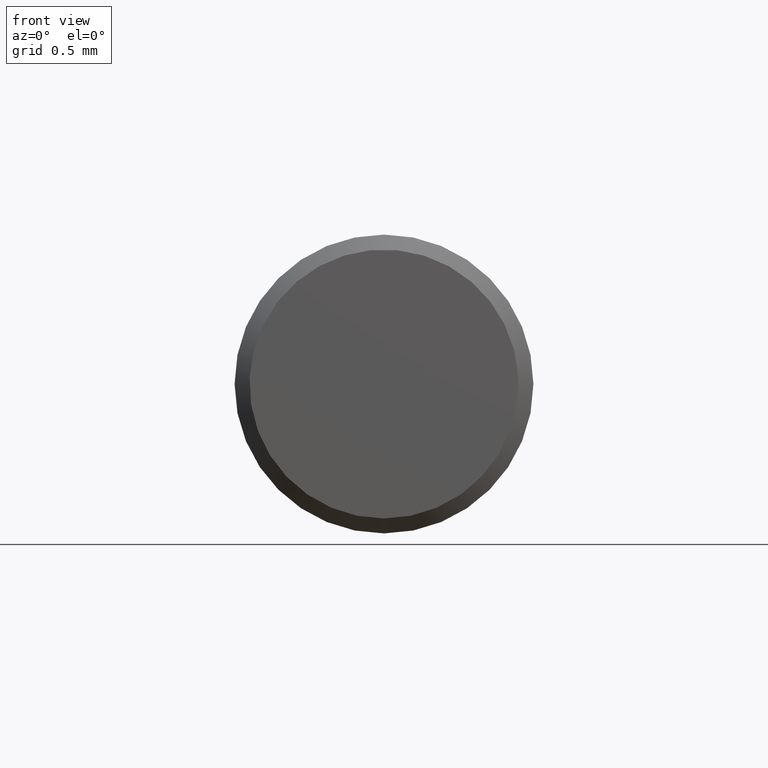
[diagram: clean part render]
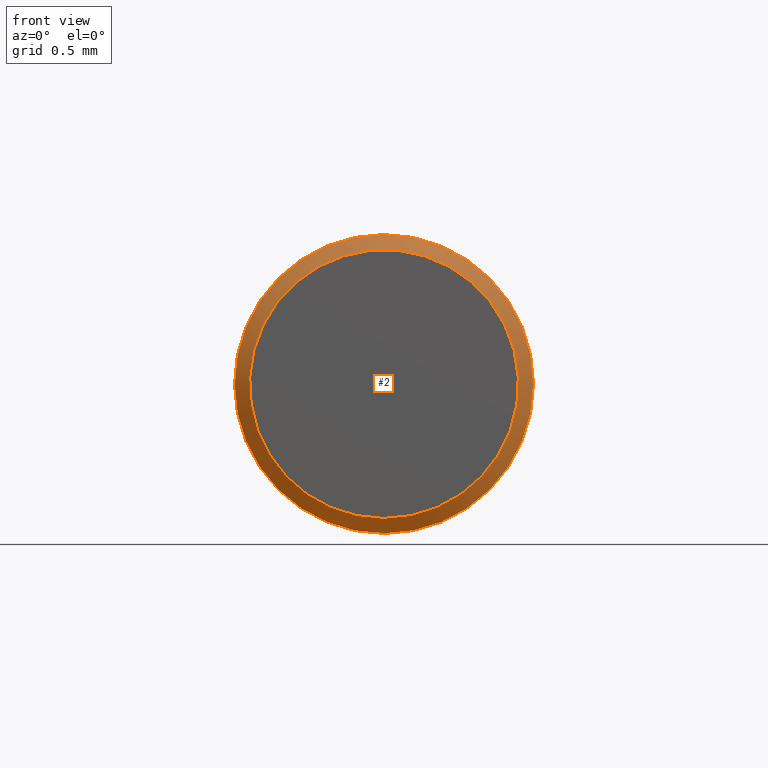
[diagram: same view with one face highlighted and labeled with its STEP entity id]
A machine part, front view. The second image highlights one B-rep face of the part: STEP entity #2.
In plain terms, the highlighted conical surface has half-angle 45 deg.
Its self-contained STEP definition (entity closure, byte-faithful):
#2 = ADVANCED_FACE ( 'NONE', ( #44, #183 ), #206, .T. ) ;
#7 = CARTESIAN_POINT ( 'NONE',  ( 0.0000000000000000000, -5.819969708882415714E-17, 0.0000000000000000000 ) ) ;
#19 = CARTESIAN_POINT ( 'NONE',  ( 0.0000000000000000000, -5.819969708882415714E-17, -0.8999999999999998002 ) ) ;
#31 = CIRCLE ( 'NONE', #244, 0.8999999999999998002 ) ;
#44 = FACE_OUTER_BOUND ( 'NONE', #110, .T. ) ;
#77 = CARTESIAN_POINT ( 'NONE',  ( 0.0000000000000000000, -5.819969708882415714E-17, 0.0000000000000000000 ) ) ;
#83 = DIRECTION ( 'NONE',  ( 0.0000000000000000000, 0.0000000000000000000, -1.000000000000000000 ) ) ;
#101 = CARTESIAN_POINT ( 'NONE',  ( 0.0000000000000000000, 0.1000000000000002137, 0.0000000000000000000 ) ) ;
#102 = VERTEX_POINT ( 'NONE', #136 ) ;
#103 = EDGE_LOOP ( 'NONE', ( #243 ) ) ;
#110 = EDGE_LOOP ( 'NONE', ( #152 ) ) ;
#136 = CARTESIAN_POINT ( 'NONE',  ( 0.0000000000000000000, 0.1000000000000002137, -1.000000000000000000 ) ) ;
#144 = DIRECTION ( 'NONE',  ( -0.0000000000000000000, -1.000000000000000000, -0.0000000000000000000 ) ) ;
#152 = ORIENTED_EDGE ( 'NONE', *, *, #185, .F. ) ;
#160 = DIRECTION ( 'NONE',  ( 0.0000000000000000000, 0.0000000000000000000, 1.000000000000000000 ) ) ;
#162 = VERTEX_POINT ( 'NONE', #19 ) ;
#166 = EDGE_CURVE ( 'NONE', #162, #162, #31, .T. ) ;
#183 = FACE_BOUND ( 'NONE', #103, .T. ) ;
#185 = EDGE_CURVE ( 'NONE', #102, #102, #276, .T. ) ;
#203 = DIRECTION ( 'NONE',  ( 0.0000000000000000000, 1.000000000000000000, 0.0000000000000000000 ) ) ;
#206 = CONICAL_SURFACE ( 'NONE', #251, 0.8999999999999998002, 0.7853981633974482790 ) ;
#236 = DIRECTION ( 'NONE',  ( 0.0000000000000000000, 1.000000000000000000, 0.0000000000000000000 ) ) ;
#239 = AXIS2_PLACEMENT_3D ( 'NONE', #101, #236, #83 ) ;
#243 = ORIENTED_EDGE ( 'NONE', *, *, #166, .F. ) ;
#244 = AXIS2_PLACEMENT_3D ( 'NONE', #7, #144, #283 ) ;
#251 = AXIS2_PLACEMENT_3D ( 'NONE', #77, #203, #160 ) ;
#276 = CIRCLE ( 'NONE', #239, 1.000000000000000000 ) ;
#283 = DIRECTION ( 'NONE',  ( 0.0000000000000000000, 0.0000000000000000000, -1.000000000000000000 ) ) ;